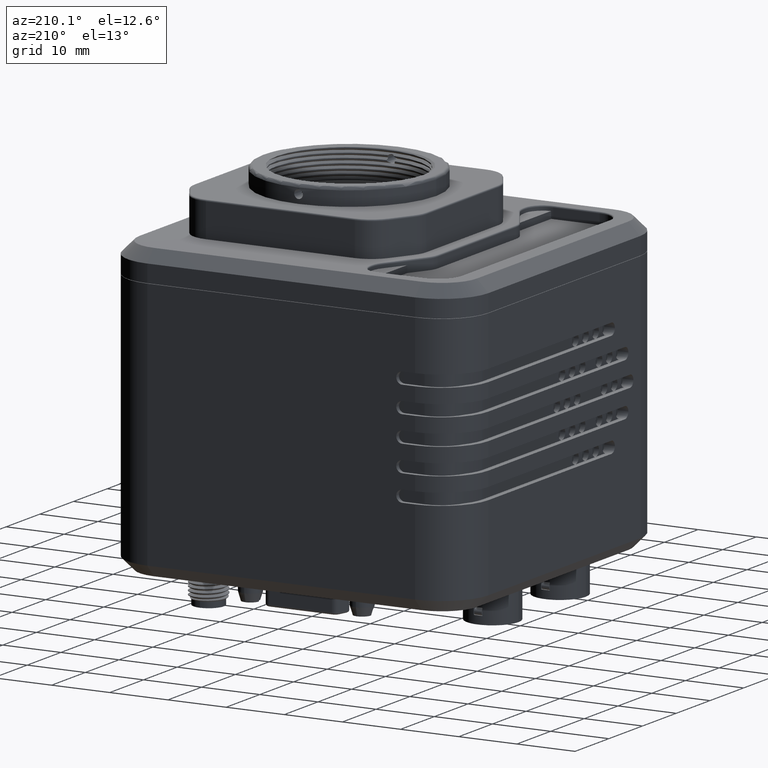
[diagram: clean part render]
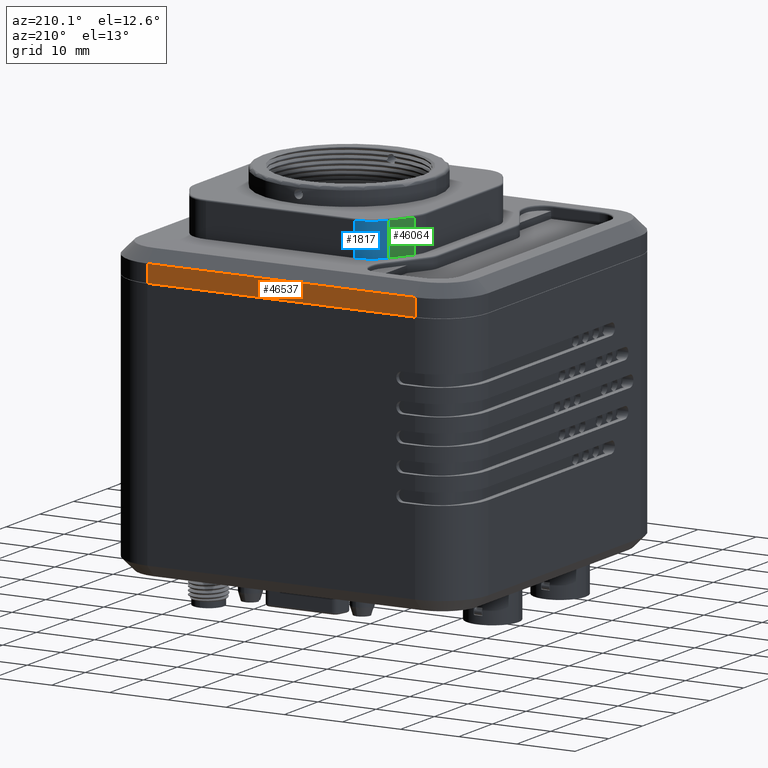
[diagram: same view with three faces highlighted in distinct colors, each labeled with its STEP entity id]
A machine part, auxiliary view with three faces highlighted in distinct colors.
Their STEP definitions:

[orange] entity #46537 — the highlighted planar face has unit normal (0, -1, 0).
#1055 = CARTESIAN_POINT ( 'NONE',  ( -9.781131673060002640, 50.86178579707100056, 30.58307532111199833 ) ) ;
#3138 = EDGE_CURVE ( 'NONE', #3992, #16613, #23638, .T. ) ;
#3992 = VERTEX_POINT ( 'NONE', #24914 ) ;
#5944 = CARTESIAN_POINT ( 'NONE',  ( 36.21886832694000447, 50.86178579707100056, 30.58307532111199833 ) ) ;
#7382 = DIRECTION ( 'NONE',  ( 0.000000000000000000, -1.000000000000000000, 0.000000000000000000 ) ) ;
#8739 = ORIENTED_EDGE ( 'NONE', *, *, #59521, .F. ) ;
#12556 = EDGE_LOOP ( 'NONE', ( #8739, #12754, #39946, #21290 ) ) ;
#12754 = ORIENTED_EDGE ( 'NONE', *, *, #48640, .F. ) ;
#13666 = CARTESIAN_POINT ( 'NONE',  ( -9.781131673060002640, 50.86178579707100056, 41.58307532111199833 ) ) ;
#15678 = DIRECTION ( 'NONE',  ( 1.000000000000000000, 0.000000000000000000, 0.000000000000000000 ) ) ;
#16404 = VERTEX_POINT ( 'NONE', #5944 ) ;
#16613 = VERTEX_POINT ( 'NONE', #48758 ) ;
#17551 = CARTESIAN_POINT ( 'NONE',  ( -9.781131673060002640, 50.86178579707100056, 41.58307532111199833 ) ) ;
#18603 = DIRECTION ( 'NONE',  ( 0.000000000000000000, 0.000000000000000000, 1.000000000000000000 ) ) ;
#18847 = FACE_OUTER_BOUND ( 'NONE', #12556, .T. ) ;
#21290 = ORIENTED_EDGE ( 'NONE', *, *, #3138, .F. ) ;
#23075 = LINE ( 'NONE', #17551, #41255 ) ;
#23638 = LINE ( 'NONE', #29914, #37623 ) ;
#24914 = CARTESIAN_POINT ( 'NONE',  ( 36.21886832694000447, 50.86178579706074743, 33.58307532109822091 ) ) ;
#25932 = EDGE_CURVE ( 'NONE', #16613, #64515, #23075, .T. ) ;
#26387 = CARTESIAN_POINT ( 'NONE',  ( -9.781131673060002640, 50.86178579707100056, 30.58307532111199833 ) ) ;
#29914 = CARTESIAN_POINT ( 'NONE',  ( -9.781131673060002640, 50.86178579707100056, 33.58307532110846694 ) ) ;
#31368 = DIRECTION ( 'NONE',  ( 0.000000000000000000, 0.000000000000000000, -1.000000000000000000 ) ) ;
#34728 = DIRECTION ( 'NONE',  ( -1.000000000000000000, 0.000000000000000000, 0.000000000000000000 ) ) ;
#37444 = AXIS2_PLACEMENT_3D ( 'NONE', #13666, #7382, #31368 ) ;
#37623 = VECTOR ( 'NONE', #34728, 1000.000000000000000 ) ;
#39946 = ORIENTED_EDGE ( 'NONE', *, *, #25932, .F. ) ;
#41255 = VECTOR ( 'NONE', #57104, 1000.000000000000000 ) ;
#46537 = ADVANCED_FACE ( 'NONE', ( #18847 ), #58038, .F. ) ;
#47061 = CARTESIAN_POINT ( 'NONE',  ( 36.21886832694000447, 50.86178579707100056, 41.58307532111199833 ) ) ;
#48581 = LINE ( 'NONE', #26387, #60154 ) ;
#48640 = EDGE_CURVE ( 'NONE', #64515, #16404, #48581, .T. ) ;
#48758 = CARTESIAN_POINT ( 'NONE',  ( -9.781131673060002640, 50.86178579707144820, 33.58307532111246019 ) ) ;
#57104 = DIRECTION ( 'NONE',  ( 0.000000000000000000, 0.000000000000000000, -1.000000000000000000 ) ) ;
#58038 = PLANE ( 'NONE',  #37444 ) ;
#59521 = EDGE_CURVE ( 'NONE', #16404, #3992, #62613, .T. ) ;
#60154 = VECTOR ( 'NONE', #15678, 1000.000000000000000 ) ;
#62613 = LINE ( 'NONE', #47061, #70131 ) ;
#64515 = VERTEX_POINT ( 'NONE', #1055 ) ;
#70131 = VECTOR ( 'NONE', #18603, 1000.000000000000000 ) ;

[blue] entity #1817 — the highlighted cylindrical surface (edge-blend (fillet) strip) has radius 5 mm, axis along (0, 0, 1).
#1817 = ADVANCED_FACE ( 'NONE', ( #69958 ), #31073, .T. ) ;
#2967 = DIRECTION ( 'NONE',  ( 0.000000000000000000, 0.000000000000000000, 1.000000000000000000 ) ) ;
#3296 = ORIENTED_EDGE ( 'NONE', *, *, #38403, .F. ) ;
#3709 = CARTESIAN_POINT ( 'NONE',  ( 6.930193192345240227, 39.86178579707100056, 35.58307532111199833 ) ) ;
#4045 = CARTESIAN_POINT ( 'NONE',  ( 2.600066173423048355, 37.36178579707100056, 41.33307532111199833 ) ) ;
#4958 = CARTESIAN_POINT ( 'NONE',  ( 2.600066173423048355, 37.36178579707100056, 35.58307532111199833 ) ) ;
#5095 = ORIENTED_EDGE ( 'NONE', *, *, #52342, .F. ) ;
#6506 = DIRECTION ( 'NONE',  ( 0.000000000000000000, 0.000000000000000000, -1.000000000000000000 ) ) ;
#10284 = EDGE_CURVE ( 'NONE', #10951, #35124, #62129, .T. ) ;
#10951 = VERTEX_POINT ( 'NONE', #4045 ) ;
#11693 = CARTESIAN_POINT ( 'NONE',  ( 6.930193192345240227, 34.86178579707100056, 35.58307532111199833 ) ) ;
#14442 = CARTESIAN_POINT ( 'NONE',  ( 2.600066173423048355, 37.36178579707100056, 35.58307532111199833 ) ) ;
#14606 = CARTESIAN_POINT ( 'NONE',  ( 6.930193192345240227, 34.86178579707100056, 41.33307532111199833 ) ) ;
#16750 = VECTOR ( 'NONE', #26265, 1000.000000000000000 ) ;
#17456 = AXIS2_PLACEMENT_3D ( 'NONE', #19278, #71389, #42907 ) ;
#19278 = CARTESIAN_POINT ( 'NONE',  ( 6.930193192345240227, 34.86178579707100056, 35.58307532111199833 ) ) ;
#24372 = EDGE_LOOP ( 'NONE', ( #64701, #25272, #3296, #5095 ) ) ;
#25272 = ORIENTED_EDGE ( 'NONE', *, *, #10284, .T. ) ;
#26265 = DIRECTION ( 'NONE',  ( 0.000000000000000000, 0.000000000000000000, 1.000000000000000000 ) ) ;
#30864 = DIRECTION ( 'NONE',  ( 1.000000000000000000, 1.387778780781445873E-15, 0.000000000000000000 ) ) ;
#31073 = CYLINDRICAL_SURFACE ( 'NONE', #17456, 4.999999999999999112 ) ;
#31101 = VECTOR ( 'NONE', #2967, 1000.000000000000000 ) ;
#31798 = LINE ( 'NONE', #3709, #16750 ) ;
#31946 = EDGE_CURVE ( 'NONE', #41668, #10951, #53621, .T. ) ;
#33051 = CIRCLE ( 'NONE', #43672, 4.999999999999999112 ) ;
#34818 = AXIS2_PLACEMENT_3D ( 'NONE', #14606, #37131, #30864 ) ;
#35124 = VERTEX_POINT ( 'NONE', #47858 ) ;
#37131 = DIRECTION ( 'NONE',  ( 0.000000000000000000, 0.000000000000000000, -1.000000000000000000 ) ) ;
#37588 = CARTESIAN_POINT ( 'NONE',  ( 6.930193192345240227, 39.86178579707100056, 35.58307532111199833 ) ) ;
#38403 = EDGE_CURVE ( 'NONE', #64681, #35124, #31798, .T. ) ;
#41668 = VERTEX_POINT ( 'NONE', #4958 ) ;
#42907 = DIRECTION ( 'NONE',  ( 1.000000000000000000, 0.000000000000000000, 0.000000000000000000 ) ) ;
#43672 = AXIS2_PLACEMENT_3D ( 'NONE', #11693, #6506, #68286 ) ;
#47858 = CARTESIAN_POINT ( 'NONE',  ( 6.930193192345240227, 39.86178579707100056, 41.33307532111199833 ) ) ;
#52342 = EDGE_CURVE ( 'NONE', #41668, #64681, #33051, .T. ) ;
#53621 = LINE ( 'NONE', #14442, #31101 ) ;
#62129 = CIRCLE ( 'NONE', #34818, 4.999999999999999112 ) ;
#64681 = VERTEX_POINT ( 'NONE', #37588 ) ;
#64701 = ORIENTED_EDGE ( 'NONE', *, *, #31946, .T. ) ;
#68286 = DIRECTION ( 'NONE',  ( 1.000000000000000000, 4.163336342344337815E-15, 0.000000000000000000 ) ) ;
#69958 = FACE_OUTER_BOUND ( 'NONE', #24372, .T. ) ;
#71389 = DIRECTION ( 'NONE',  ( 0.000000000000000000, 0.000000000000000000, 1.000000000000000000 ) ) ;

[green] entity #46064 — the highlighted planar face has unit normal (-0.866, 0.5, 0).
#785 = ORIENTED_EDGE ( 'NONE', *, *, #31946, .F. ) ;
#2967 = DIRECTION ( 'NONE',  ( 0.000000000000000000, 0.000000000000000000, 1.000000000000000000 ) ) ;
#3032 = LINE ( 'NONE', #64804, #36978 ) ;
#4045 = CARTESIAN_POINT ( 'NONE',  ( 2.600066173423048355, 37.36178579707100056, 41.33307532111199833 ) ) ;
#4958 = CARTESIAN_POINT ( 'NONE',  ( 2.600066173423048355, 37.36178579707100056, 35.58307532111199833 ) ) ;
#5366 = CARTESIAN_POINT ( 'NONE',  ( 0.3887413080178002689, 33.53165877814861773, 35.58307532111199833 ) ) ;
#10951 = VERTEX_POINT ( 'NONE', #4045 ) ;
#11930 = FACE_OUTER_BOUND ( 'NONE', #17047, .T. ) ;
#14442 = CARTESIAN_POINT ( 'NONE',  ( 2.600066173423048355, 37.36178579707100056, 35.58307532111199833 ) ) ;
#15553 = VERTEX_POINT ( 'NONE', #22740 ) ;
#17047 = EDGE_LOOP ( 'NONE', ( #43434, #61857, #785, #55973 ) ) ;
#22740 = CARTESIAN_POINT ( 'NONE',  ( 0.3887413080178002689, 33.53165877814861773, 41.33307532111199833 ) ) ;
#23582 = VECTOR ( 'NONE', #33090, 1000.000000000000114 ) ;
#24926 = EDGE_CURVE ( 'NONE', #52951, #41668, #54930, .T. ) ;
#27805 = DIRECTION ( 'NONE',  ( 0.000000000000000000, 0.000000000000000000, 1.000000000000000000 ) ) ;
#28535 = CARTESIAN_POINT ( 'NONE',  ( 0.3887413080178002689, 33.53165877814861773, -84.93694937916220056 ) ) ;
#28933 = CARTESIAN_POINT ( 'NONE',  ( 7.218868326939999136, 45.36178579707100056, -84.93694937916220056 ) ) ;
#31101 = VECTOR ( 'NONE', #2967, 1000.000000000000000 ) ;
#31946 = EDGE_CURVE ( 'NONE', #41668, #10951, #53621, .T. ) ;
#33090 = DIRECTION ( 'NONE',  ( 0.4999999999999940048, 0.8660254037844420383, 0.000000000000000000 ) ) ;
#34463 = PLANE ( 'NONE',  #38555 ) ;
#36978 = VECTOR ( 'NONE', #49233, 999.9999999999998863 ) ;
#38555 = AXIS2_PLACEMENT_3D ( 'NONE', #28933, #48472, #65143 ) ;
#40690 = EDGE_CURVE ( 'NONE', #15553, #10951, #3032, .T. ) ;
#41668 = VERTEX_POINT ( 'NONE', #4958 ) ;
#43152 = CARTESIAN_POINT ( 'NONE',  ( 0.3887413080178002689, 33.53165877814861773, 35.58307532111199833 ) ) ;
#43434 = ORIENTED_EDGE ( 'NONE', *, *, #65158, .T. ) ;
#46064 = ADVANCED_FACE ( 'NONE', ( #11930 ), #34463, .T. ) ;
#48472 = DIRECTION ( 'NONE',  ( -0.8660254037844394848, 0.4999999999999985567, 0.000000000000000000 ) ) ;
#49233 = DIRECTION ( 'NONE',  ( 0.4999999999999986122, 0.8660254037844394848, 0.000000000000000000 ) ) ;
#52951 = VERTEX_POINT ( 'NONE', #43152 ) ;
#53621 = LINE ( 'NONE', #14442, #31101 ) ;
#54930 = LINE ( 'NONE', #5366, #23582 ) ;
#55905 = LINE ( 'NONE', #28535, #63257 ) ;
#55973 = ORIENTED_EDGE ( 'NONE', *, *, #24926, .F. ) ;
#61857 = ORIENTED_EDGE ( 'NONE', *, *, #40690, .T. ) ;
#63257 = VECTOR ( 'NONE', #27805, 1000.000000000000000 ) ;
#64804 = CARTESIAN_POINT ( 'NONE',  ( 7.218868326939999136, 45.36178579707100056, 41.33307532111199833 ) ) ;
#65143 = DIRECTION ( 'NONE',  ( 0.000000000000000000, 0.000000000000000000, 1.000000000000000000 ) ) ;
#65158 = EDGE_CURVE ( 'NONE', #52951, #15553, #55905, .T. ) ;